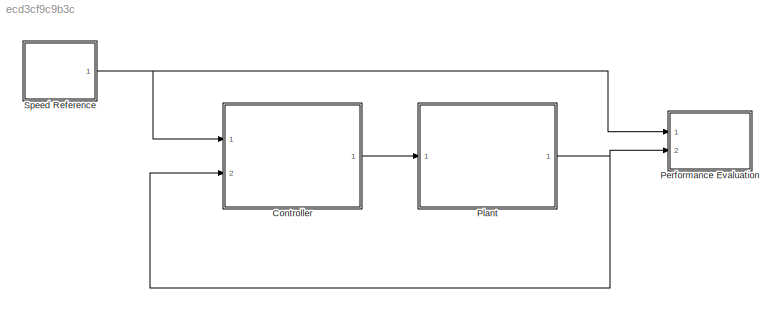
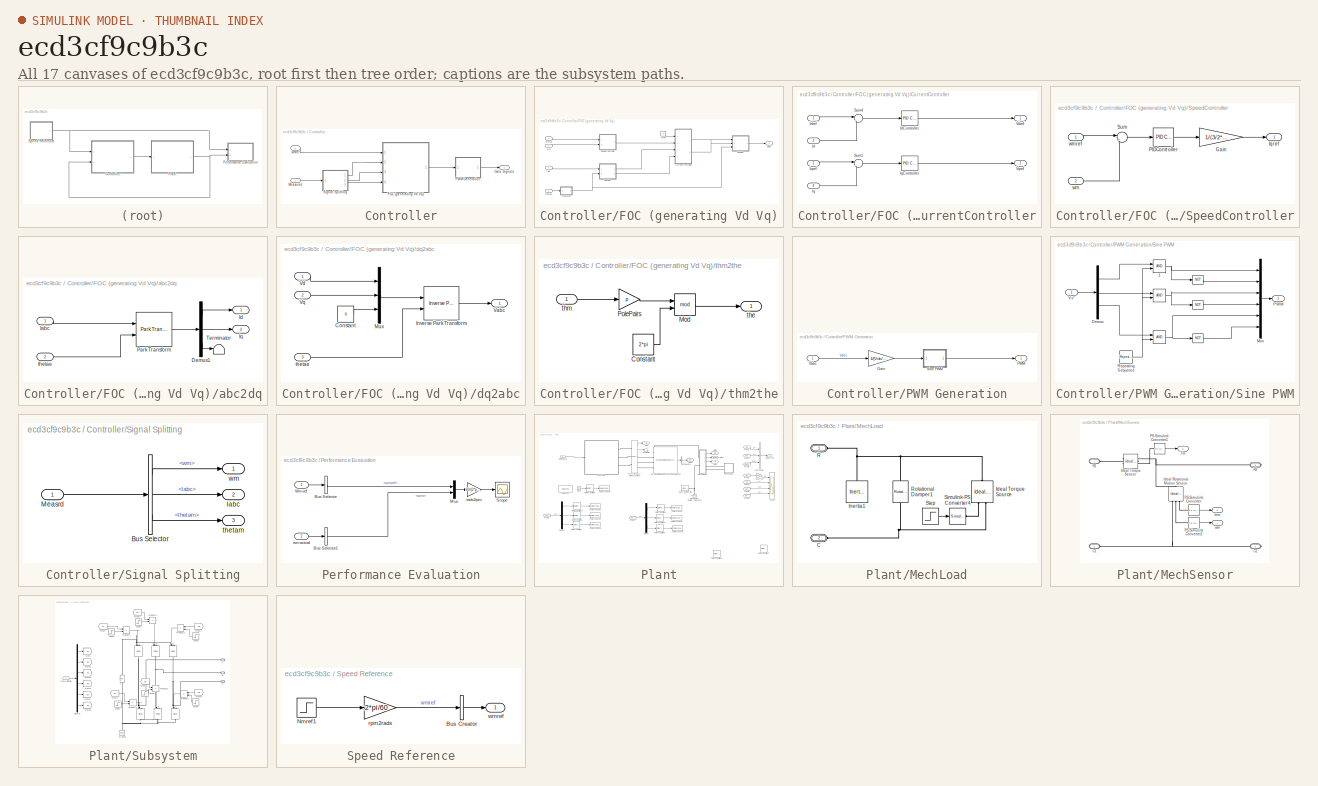
[diagram: thumbnail index - all 17 canvases of the model, root first then tree order]
MODEL slx_ecd3cf9c9b3c
KIND model
CONFIG AbsTol = auto
CONFIG EnableMultiTasking = off
CONFIG FixedStep = auto
CONFIG InitFcn = Phi = 0.1;\nLd = 0.01;\nLq = 0.02;\nRs = 0.38;\np = 2;\nJm = 0.1e-3;\nDm = 1e-3;\nVdc = 100;\nfc = 10e3;\nTs = 1/fc/100;\nt  = 1/fc;\nKp_id = 3.6687;\nKi_id = 387.9764;\nKp_iq = 133.9450;\nKi_iq = 977.0344;\nKp_s = 0.0276;\nKi_s = 0.1598;
CONFIG MaxStep = auto
CONFIG MinStep = auto
CONFIG RelTol = 1e-3
CONFIG SampleTimeConstraint = Unconstrained
CONFIG SolverName = FixedStepAuto
CONFIG StartTime = 0.0
CONFIG StopTime = 0.5
BLOCK [SubSystem] Controller
  Ports = [2, 1]
  RequestExecContextInheritance = off
BLOCK [SubSystem] Controller/FOC (generating Vd Vq)
  Ports = [4, 1]
  RequestExecContextInheritance = off
BLOCK [SubSystem] Controller/FOC (generating Vd Vq)/CurrentController
  Ports = [4, 2]
  RequestExecContextInheritance = off
BLOCK [Inport] Controller/FOC (generating Vd Vq)/CurrentController/Id
  Port = 3
BLOCK [Reference] Controller/FOC (generating Vd Vq)/CurrentController/IdController  REF=pid_lib/PID Controller
  Ports = [1, 1]
  SourceBlock = pid_lib/PID Controller
  SourceProductBaseCode = SL
  SourceType = PID 1dof
BLOCK [Inport] Controller/FOC (generating Vd Vq)/CurrentController/Idref
BLOCK [Inport] Controller/FOC (generating Vd Vq)/CurrentController/Iq
  Port = 4
BLOCK [Reference] Controller/FOC (generating Vd Vq)/CurrentController/IqController  REF=pid_lib/PID Controller
  Ports = [1, 1]
  SourceBlock = pid_lib/PID Controller
  SourceProductBaseCode = SL
  SourceType = PID 1dof
BLOCK [Inport] Controller/FOC (generating Vd Vq)/CurrentController/Iqref
  Port = 2
BLOCK [Sum] Controller/FOC (generating Vd Vq)/CurrentController/Sum1
  Inputs = |+-
  Ports = [2, 1]
BLOCK [Sum] Controller/FOC (generating Vd Vq)/CurrentController/Sum4
  Inputs = |+-
  Ports = [2, 1]
BLOCK [Outport] Controller/FOC (generating Vd Vq)/CurrentController/Vdref
  VectorParamsAs1DForOutWhenUnconnected = off
BLOCK [Outport] Controller/FOC (generating Vd Vq)/CurrentController/Vqref
  Port = 2
  VectorParamsAs1DForOutWhenUnconnected = off
BLOCK [Inport] Controller/FOC (generating Vd Vq)/Iabc
  Port = 3
BLOCK [Constant] Controller/FOC (generating Vd Vq)/Idref
  SampleTime = -1
  Value = 0
BLOCK [SubSystem] Controller/FOC (generating Vd Vq)/SpeedController
  Ports = [2, 1]
  RequestExecContextInheritance = off
BLOCK [Gain] Controller/FOC (generating Vd Vq)/SpeedController/Gain
  Gain = 1/(3/2*p*Phi)
BLOCK [Outport] Controller/FOC (generating Vd Vq)/SpeedController/Iqref
  VectorParamsAs1DForOutWhenUnconnected = off
BLOCK [Reference] Controller/FOC (generating Vd Vq)/SpeedController/PIDController  REF=pid_lib/PID Controller
  Ports = [1, 1]
  SourceBlock = pid_lib/PID Controller
  SourceProductBaseCode = SL
  SourceType = PID 1dof
BLOCK [Sum] Controller/FOC (generating Vd Vq)/SpeedController/Sum
  Inputs = |+-
  Ports = [2, 1]
BLOCK [Inport] Controller/FOC (generating Vd Vq)/SpeedController/wm
  Port = 2
BLOCK [Inport] Controller/FOC (generating Vd Vq)/SpeedController/wmref
BLOCK [Outport] Controller/FOC (generating Vd Vq)/Vabc
  VectorParamsAs1DForOutWhenUnconnected = off
BLOCK [SubSystem] Controller/FOC (generating Vd Vq)/abc2dq
  Ports = [2, 2]
  RequestExecContextInheritance = off
BLOCK [Demux] Controller/FOC (generating Vd Vq)/abc2dq/Demux1
  Outputs = 3
  Ports = [1, 3]
BLOCK [Inport] Controller/FOC (generating Vd Vq)/abc2dq/Iabc
BLOCK [Outport] Controller/FOC (generating Vd Vq)/abc2dq/Id
  VectorParamsAs1DForOutWhenUnconnected = off
BLOCK [Outport] Controller/FOC (generating Vd Vq)/abc2dq/Iq
  Port = 2
  VectorParamsAs1DForOutWhenUnconnected = off
BLOCK [Reference] Controller/FOC (generating Vd Vq)/abc2dq/Park Transform  REF=eeTransforms/Park Transform
  Ports = [2, 1]
  SourceBlock = eeTransforms/Park Transform
  SourceProductBaseCode = PS
  SourceType = Park Transform
BLOCK [Terminator] Controller/FOC (generating Vd Vq)/abc2dq/Terminator
BLOCK [Inport] Controller/FOC (generating Vd Vq)/abc2dq/thetae
  Port = 2
BLOCK [SubSystem] Controller/FOC (generating Vd Vq)/dq2abc
  Ports = [3, 1]
  RequestExecContextInheritance = off
BLOCK [Constant] Controller/FOC (generating Vd Vq)/dq2abc/Constant
  Value = 0
BLOCK [Reference] Controller/FOC (generating Vd Vq)/dq2abc/Inverse Park Transform  REF=eeTransforms/Inverse
Park Transform
  Ports = [2, 1]
  SourceBlock = eeTransforms/Inverse\nPark Transform
  SourceProductBaseCode = PS
  SourceType = Inverse Park Transform
BLOCK [Mux] Controller/FOC (generating Vd Vq)/dq2abc/Mux
  DisplayOption = bar
  Inputs = 3
  Ports = [3, 1]
BLOCK [Outport] Controller/FOC (generating Vd Vq)/dq2abc/Vabc
  VectorParamsAs1DForOutWhenUnconnected = off
BLOCK [Inport] Controller/FOC (generating Vd Vq)/dq2abc/Vd
BLOCK [Inport] Controller/FOC (generating Vd Vq)/dq2abc/Vq
  Port = 2
BLOCK [Inport] Controller/FOC (generating Vd Vq)/dq2abc/thetae
  Port = 3
BLOCK [Inport] Controller/FOC (generating Vd Vq)/thetam
  Port = 4
BLOCK [SubSystem] Controller/FOC (generating Vd Vq)/thm2the
  Ports = [1, 1]
  RequestExecContextInheritance = off
BLOCK [Constant] Controller/FOC (generating Vd Vq)/thm2the/Constant
  Value = 2*pi
BLOCK [Math] Controller/FOC (generating Vd Vq)/thm2the/Mod
  Operator = mod
  Ports = [2, 1]
  SignedPower = on
BLOCK [Gain] Controller/FOC (generating Vd Vq)/thm2the/PolePairs
  Gain = p
BLOCK [Outport] Controller/FOC (generating Vd Vq)/thm2the/the
  VectorParamsAs1DForOutWhenUnconnected = off
BLOCK [Inport] Controller/FOC (generating Vd Vq)/thm2the/thm
BLOCK [Inport] Controller/FOC (generating Vd Vq)/wm
  Port = 2
BLOCK [Inport] Controller/FOC (generating Vd Vq)/wmref
BLOCK [Outport] Controller/Gate Signals
  VectorParamsAs1DForOutWhenUnconnected = off
BLOCK [Inport] Controller/Measured
  Port = 2
BLOCK [SubSystem] Controller/PWM Generation
  Ports = [1, 1]
  RequestExecContextInheritance = off
BLOCK [Gain] Controller/PWM Generation/Gain
  Gain = 1/(Vdc/2)
BLOCK [Outport] Controller/PWM Generation/PWM
  VectorParamsAs1DForOutWhenUnconnected = off
BLOCK [SubSystem] Controller/PWM Generation/Sine PWM
  Ports = [1, 1]
  RequestExecContextInheritance = off
BLOCK [RelationalOperator] Controller/PWM Generation/Sine PWM/  
  InputSameDT = off
  OutDataTypeStr = boolean
  Ports = [2, 1]
BLOCK [RelationalOperator] Controller/PWM Generation/Sine PWM/   
  InputSameDT = off
  OutDataTypeStr = boolean
  Ports = [2, 1]
BLOCK [Logic] Controller/PWM Generation/Sine PWM/    
  AllPortsSameDT = off
  Operator = NOT
  OutDataTypeStr = boolean
  Ports = [1, 1]
BLOCK [Logic] Controller/PWM Generation/Sine PWM/     
  AllPortsSameDT = off
  Operator = NOT
  OutDataTypeStr = boolean
  Ports = [1, 1]
BLOCK [Logic] Controller/PWM Generation/Sine PWM/       
  AllPortsSameDT = off
  Operator = NOT
  OutDataTypeStr = boolean
  Ports = [1, 1]
BLOCK [RelationalOperator] Controller/PWM Generation/Sine PWM/ 1
  InputSameDT = off
  OutDataTypeStr = boolean
  Ports = [2, 1]
BLOCK [Demux] Controller/PWM Generation/Sine PWM/Demux
  Outputs = 3
  Ports = [1, 3]
BLOCK [Mux] Controller/PWM Generation/Sine PWM/Mux
  DisplayOption = bar
  Inputs = 6
  Ports = [6, 1]
BLOCK [Outport] Controller/PWM Generation/Sine PWM/PWM
  VectorParamsAs1DForOutWhenUnconnected = off
BLOCK [Reference] Controller/PWM Generation/Sine PWM/Repeating Sequence  REF=simulink/Sources/Repeating
Sequence
  Ports = [0, 1]
  SourceBlock = simulink/Sources/Repeating\nSequence
  SourceProductBaseCode = SL
  SourceType = Repeating table
BLOCK [Inport] Controller/PWM Generation/Sine PWM/Vs*
BLOCK [Inport] Controller/PWM Generation/Vabc
BLOCK [SubSystem] Controller/Signal Splitting
  Ports = [1, 3]
  RequestExecContextInheritance = off
BLOCK [BusSelector] Controller/Signal Splitting/Bus Selector
  OutputSignals = wm,Iabc,thetam
  Ports = [1, 3]
BLOCK [Outport] Controller/Signal Splitting/Iabc
  Port = 2
  VectorParamsAs1DForOutWhenUnconnected = off
BLOCK [Inport] Controller/Signal Splitting/Measrd
BLOCK [Outport] Controller/Signal Splitting/thetam
  Port = 3
  VectorParamsAs1DForOutWhenUnconnected = off
BLOCK [Outport] Controller/Signal Splitting/wm
  VectorParamsAs1DForOutWhenUnconnected = off
BLOCK [Inport] Controller/wmref
BLOCK [SubSystem] Performance Evaluation
  Ports = [2]
  RequestExecContextInheritance = off
BLOCK [BusSelector] Performance Evaluation/Bus Selector
  OutputSignals = wmref
  Ports = [1, 1]
BLOCK [BusSelector] Performance Evaluation/Bus Selector1
  OutputSignals = wm
  Ports = [1, 1]
BLOCK [Mux] Performance Evaluation/Mux
  DisplayOption = bar
  Inputs = 2
  Ports = [2, 1]
BLOCK [Scope] Performance Evaluation/Scope
  Floating = off
  NumInputPorts = 1
  Ports = [1]
  ScopeSpecificationString = Simulink.scopes.TimeScopeBlockCfg('CurrentConfiguration', extmgr.ConfigurationSet(extmgr.Configuration('Core','General UI',true),extmgr.Configuration('Core','Source UI',true),extmgr.Configuration('Sources','WiredSimulink',true),extmgr.Configuration('Visuals','Time Domain',true,'SerializedDisplays',{struct('MinYLimReal','995.86027','MaxYLimReal','1007.02255','YLabelReal','','MinYLimMag','995.86027'...<+1658ch>
BLOCK [Inport] Performance Evaluation/Wmref
BLOCK [Gain] Performance Evaluation/rads2rpm
  Gain = 60/(2*pi)
BLOCK [Inport] Performance Evaluation/wmactual
  Port = 2
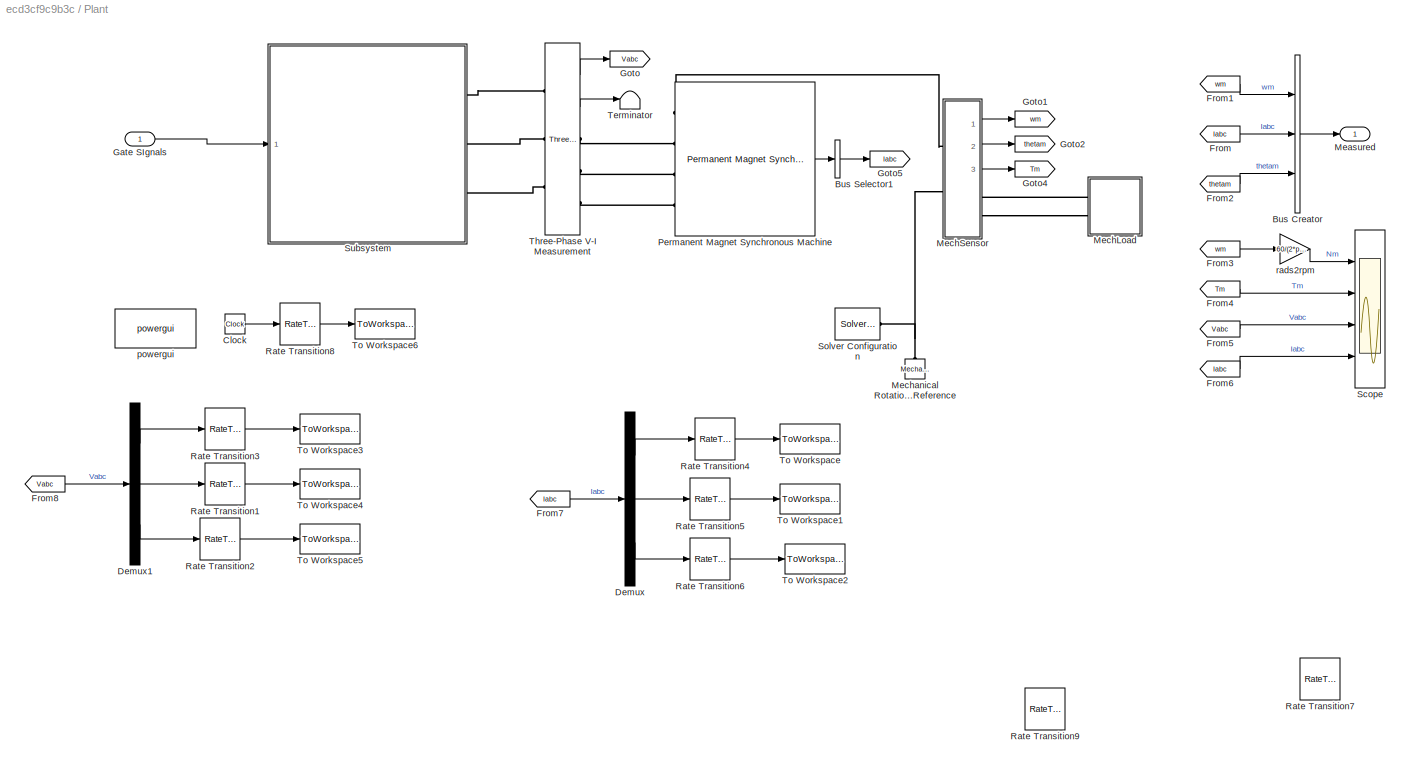
BLOCK [SubSystem] Plant
  Ports = [1, 1]
  RequestExecContextInheritance = off
BLOCK [BusCreator] Plant/Bus Creator
  DisplayOption = bar
  InheritFromInputs = on
  Inputs = 3
  Ports = [3, 1]
BLOCK [BusSelector] Plant/Bus Selector1
  OutputAsBus = on
  OutputSignals = Stator current is_a (A),Stator current is_b (A),Stator current is_c (A)
  Ports = [1, 1]
BLOCK [Clock] Plant/Clock
BLOCK [Demux] Plant/Demux
  Outputs = 3
  Ports = [1, 3]
BLOCK [Demux] Plant/Demux1
  Outputs = 3
  Ports = [1, 3]
BLOCK [From] Plant/From
  GotoTag = Iabc
BLOCK [From] Plant/From1
  GotoTag = wm
BLOCK [From] Plant/From2
  GotoTag = thetam
BLOCK [From] Plant/From3
  GotoTag = wm
BLOCK [From] Plant/From4
  GotoTag = Tm
BLOCK [From] Plant/From5
  GotoTag = Vabc
BLOCK [From] Plant/From6
  GotoTag = Iabc
BLOCK [From] Plant/From7
  GotoTag = Iabc
BLOCK [From] Plant/From8
  GotoTag = Vabc
BLOCK [Inport] Plant/Gate SIgnals
BLOCK [Goto] Plant/Goto
  GotoTag = Vabc
BLOCK [Goto] Plant/Goto1
  GotoTag = wm
BLOCK [Goto] Plant/Goto2
  GotoTag = thetam
BLOCK [Goto] Plant/Goto4
  GotoTag = Tm
BLOCK [Goto] Plant/Goto5
  GotoTag = Iabc
BLOCK [Outport] Plant/Measured
  VectorParamsAs1DForOutWhenUnconnected = off
BLOCK [SubSystem] Plant/MechLoad
  Ports = [0, 0, 0, 0, 0, 2]
  RequestExecContextInheritance = off
BLOCK [PMIOPort] Plant/MechLoad/C
  Port = 2
  Side = Left
BLOCK [Reference] Plant/MechLoad/Ideal Torque Source  REF=fl_lib/Mechanical/Mechanical Sources/Ideal Torque Source
  NameLocation = right
  Ports = [0, 0, 0, 0, 0, 1, 2]
  SourceBlock = fl_lib/Mechanical/Mechanical Sources/Ideal Torque Source
  SourceProductBaseCode = SS
  SourceType = Ideal Torque Source
BLOCK [Reference] Plant/MechLoad/Inertia1  REF=fl_lib/Mechanical/Rotational Elements/Inertia
  NameLocation = right
  Ports = [0, 0, 0, 0, 0, 1]
  SourceBlock = fl_lib/Mechanical/Rotational Elements/Inertia
  SourceProductBaseCode = SS
  SourceType = Inertia
BLOCK [PMIOPort] Plant/MechLoad/R
  Side = Left
BLOCK [Reference] Plant/MechLoad/Rotational Damper1  REF=fl_lib/Mechanical/Rotational Elements/Rotational Damper
  NameLocation = right
  Ports = [0, 0, 0, 0, 0, 1, 1]
  SourceBlock = fl_lib/Mechanical/Rotational Elements/Rotational Damper
  SourceProductBaseCode = SS
  SourceType = Rotational Damper
BLOCK [Reference] Plant/MechLoad/Simulink-PS Converter4  REF=nesl_utility/Simulink-PS
Converter
  Ports = [1, 0, 0, 0, 0, 0, 1]
  SourceBlock = nesl_utility/Simulink-PS\nConverter
  SourceProductBaseCode = SS
  SourceType = Simulink-PS\nConverter
BLOCK [Step] Plant/MechLoad/Step
  After = 0.2
  SampleTime = 0
  Time = 10
BLOCK [SubSystem] Plant/MechSensor
  Ports = [0, 3, 0, 0, 0, 2, 2]
  RequestExecContextInheritance = off
BLOCK [PMIOPort] Plant/MechSensor/C1
  Port = 2
  Side = Left
BLOCK [PMIOPort] Plant/MechSensor/C2
  Port = 4
  Side = Right
BLOCK [Reference] Plant/MechSensor/Ideal Rotational Motion Sensor  REF=fl_lib/Mechanical/Mechanical Sensors/Ideal Rotational
Motion Sensor
  NameLocation = right
  Ports = [0, 0, 0, 0, 0, 1, 3]
  SourceBlock = fl_lib/Mechanical/Mechanical Sensors/Ideal Rotational\nMotion Sensor
  SourceProductBaseCode = SS
  SourceType = Ideal Rotational\nMotion Sensor
BLOCK [Reference] Plant/MechSensor/Ideal Torque Sensor  REF=fl_lib/Mechanical/Mechanical Sensors/Ideal Torque Sensor
  Ports = [0, 0, 0, 0, 0, 1, 2]
  SourceBlock = fl_lib/Mechanical/Mechanical Sensors/Ideal Torque Sensor
  SourceProductBaseCode = SS
  SourceType = Ideal Torque Sensor
BLOCK [Reference] Plant/MechSensor/PS-Simulink Converter  REF=nesl_utility/PS-Simulink
Converter
  Ports = [0, 1, 0, 0, 0, 1]
  SourceBlock = nesl_utility/PS-Simulink\nConverter
  SourceProductBaseCode = SS
  SourceType = PS-Simulink\nConverter
BLOCK [Reference] Plant/MechSensor/PS-Simulink Converter1  REF=nesl_utility/PS-Simulink
Converter
  Ports = [0, 1, 0, 0, 0, 1]
  SourceBlock = nesl_utility/PS-Simulink\nConverter
  SourceProductBaseCode = SS
  SourceType = PS-Simulink\nConverter
BLOCK [Reference] Plant/MechSensor/PS-Simulink Converter2  REF=nesl_utility/PS-Simulink
Converter
  Ports = [0, 1, 0, 0, 0, 1]
  SourceBlock = nesl_utility/PS-Simulink\nConverter
  SourceProductBaseCode = SS
  SourceType = PS-Simulink\nConverter
BLOCK [PMIOPort] Plant/MechSensor/R1
  Side = Left
BLOCK [PMIOPort] Plant/MechSensor/R2
  Port = 3
  Side = Right
BLOCK [Outport] Plant/MechSensor/Tm
  Port = 3
  VectorParamsAs1DForOutWhenUnconnected = off
BLOCK [Outport] Plant/MechSensor/thm
  Port = 2
  VectorParamsAs1DForOutWhenUnconnected = off
BLOCK [Outport] Plant/MechSensor/wm
  VectorParamsAs1DForOutWhenUnconnected = off
BLOCK [Reference] Plant/Mechanical Rotational Reference  REF=fl_lib/Mechanical/Rotational Elements/Mechanical
Rotational Reference
  NameLocation = right
  Ports = [0, 0, 0, 0, 0, 1]
  SourceBlock = fl_lib/Mechanical/Rotational Elements/Mechanical\nRotational Reference
  SourceProductBaseCode = SS
  SourceType = Mechanical\nRotational Reference
BLOCK [Reference] Plant/Permanent Magnet Synchronous Machine  REF=powerlib/Machines/Permanent Magnet
Synchronous Machine
  Ports = [0, 1, 0, 0, 0, 4]
  SourceBlock = powerlib/Machines/Permanent Magnet\nSynchronous Machine
  SourceProductBaseCode = PS
  SourceType = Permanent Magnet Synchronous Machine
BLOCK [RateTransition] Plant/Rate Transition1
  OutPortSampleTime = 10^-3
BLOCK [RateTransition] Plant/Rate Transition2
  OutPortSampleTime = 10^-3
BLOCK [RateTransition] Plant/Rate Transition3
  OutPortSampleTime = 10^-3
BLOCK [RateTransition] Plant/Rate Transition4
  OutPortSampleTime = 10^-3
BLOCK [RateTransition] Plant/Rate Transition5
  OutPortSampleTime = 10^-3
BLOCK [RateTransition] Plant/Rate Transition6
  OutPortSampleTime = 10^-3
BLOCK [RateTransition] Plant/Rate Transition7
  Commented = on
  OutPortSampleTime = 10^-4
BLOCK [RateTransition] Plant/Rate Transition8
  OutPortSampleTime = 10^-3
BLOCK [RateTransition] Plant/Rate Transition9
  Commented = on
  OutPortSampleTime = 10^-3
BLOCK [Scope] Plant/Scope
  Floating = off
  NumInputPorts = 4
  Ports = [4]
  ScopeSpecificationString = Simulink.scopes.TimeScopeBlockCfg('CurrentConfiguration', extmgr.ConfigurationSet(extmgr.Configuration('Core','General UI',true,'FigureColor',[1 1 1]),extmgr.Configuration('Core','Source UI',true),extmgr.Configuration('Sources','WiredSimulink',true,'DataLoggingVariableName','ScopeData1'),extmgr.Configuration('Visuals','Time Domain',true,'SerializedDisplays',{struct('MinYLimReal','-125.04242','MaxY...<+4553ch>
BLOCK [Reference] Plant/Solver Configuration  REF=nesl_utility/Solver
Configuration
  Ports = [0, 0, 0, 0, 0, 0, 1]
  SourceBlock = nesl_utility/Solver\nConfiguration
  SourceProductBaseCode = SS
  SourceType = Solver\nConfiguration
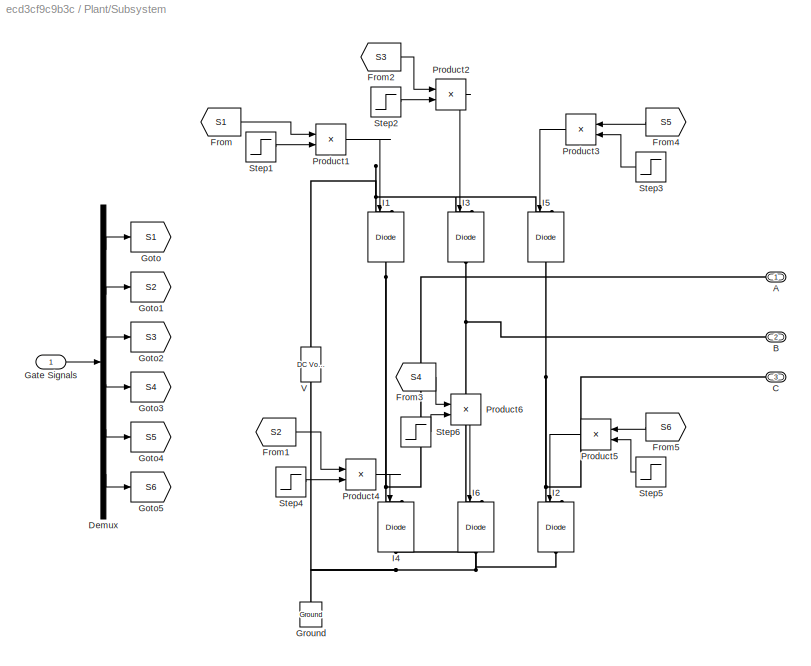
BLOCK [SubSystem] Plant/Subsystem
  Ports = [1, 0, 0, 0, 0, 0, 3]
  RequestExecContextInheritance = off
BLOCK [PMIOPort] Plant/Subsystem/A 
  Side = Right
BLOCK [PMIOPort] Plant/Subsystem/B 
  Port = 2
  Side = Right
BLOCK [PMIOPort] Plant/Subsystem/C 
  Port = 3
  Side = Right
BLOCK [Demux] Plant/Subsystem/Demux
  Outputs = 6
  Ports = [1, 6]
BLOCK [From] Plant/Subsystem/From
  GotoTag = S1
BLOCK [From] Plant/Subsystem/From1
  GotoTag = S2
BLOCK [From] Plant/Subsystem/From2
  GotoTag = S3
BLOCK [From] Plant/Subsystem/From3
  GotoTag = S4
BLOCK [From] Plant/Subsystem/From4
  GotoTag = S5
BLOCK [From] Plant/Subsystem/From5
  GotoTag = S6
BLOCK [Inport] Plant/Subsystem/Gate Signals
BLOCK [Goto] Plant/Subsystem/Goto
  GotoTag = S1
BLOCK [Goto] Plant/Subsystem/Goto1
  GotoTag = S2
BLOCK [Goto] Plant/Subsystem/Goto2
  GotoTag = S3
BLOCK [Goto] Plant/Subsystem/Goto3
  GotoTag = S4
BLOCK [Goto] Plant/Subsystem/Goto4
  GotoTag = S5
BLOCK [Goto] Plant/Subsystem/Goto5
  GotoTag = S6
BLOCK [Reference] Plant/Subsystem/Ground  REF=powerlib/Elements/Ground
  NameLocation = right
  Ports = [0, 0, 0, 0, 0, 1]
  SourceBlock = powerlib/Elements/Ground
  SourceProductBaseCode = PS
  SourceType = Ground
BLOCK [Reference] Plant/Subsystem/I1  REF=powerlib/Power
Electronics/IGBT//Diode
  NameLocation = left
  Ports = [1, 0, 0, 0, 0, 1, 1]
  SourceBlock = powerlib/Power\nElectronics/IGBT//Diode
  SourceProductBaseCode = PS
  SourceType = IGBT/Diode
BLOCK [Reference] Plant/Subsystem/I2  REF=powerlib/Power
Electronics/IGBT//Diode
  NameLocation = left
  Ports = [1, 0, 0, 0, 0, 1, 1]
  SourceBlock = powerlib/Power\nElectronics/IGBT//Diode
  SourceProductBaseCode = PS
  SourceType = IGBT/Diode
BLOCK [Reference] Plant/Subsystem/I3  REF=powerlib/Power
Electronics/IGBT//Diode
  NameLocation = left
  Ports = [1, 0, 0, 0, 0, 1, 1]
  SourceBlock = powerlib/Power\nElectronics/IGBT//Diode
  SourceProductBaseCode = PS
  SourceType = IGBT/Diode
BLOCK [Reference] Plant/Subsystem/I4  REF=powerlib/Power
Electronics/IGBT//Diode
  NameLocation = left
  Ports = [1, 0, 0, 0, 0, 1, 1]
  SourceBlock = powerlib/Power\nElectronics/IGBT//Diode
  SourceProductBaseCode = PS
  SourceType = IGBT/Diode
BLOCK [Reference] Plant/Subsystem/I5  REF=powerlib/Power
Electronics/IGBT//Diode
  NameLocation = left
  Ports = [1, 0, 0, 0, 0, 1, 1]
  SourceBlock = powerlib/Power\nElectronics/IGBT//Diode
  SourceProductBaseCode = PS
  SourceType = IGBT/Diode
BLOCK [Reference] Plant/Subsystem/I6  REF=powerlib/Power
Electronics/IGBT//Diode
  NameLocation = left
  Ports = [1, 0, 0, 0, 0, 1, 1]
  SourceBlock = powerlib/Power\nElectronics/IGBT//Diode
  SourceProductBaseCode = PS
  SourceType = IGBT/Diode
BLOCK [Product] Plant/Subsystem/Product1
  Ports = [2, 1]
BLOCK [Product] Plant/Subsystem/Product2
  NameLocation = left
  Ports = [2, 1]
BLOCK [Product] Plant/Subsystem/Product3
  NameLocation = right
  Ports = [2, 1]
BLOCK [Product] Plant/Subsystem/Product4
  NameLocation = left
  Ports = [2, 1]
BLOCK [Product] Plant/Subsystem/Product5
  NameLocation = right
  Ports = [2, 1]
BLOCK [Product] Plant/Subsystem/Product6
  NameLocation = left
  Ports = [2, 1]
BLOCK [Step] Plant/Subsystem/Step1
  After = s1
  Before = 1
  SampleTime = 0
  Time = 0.2
BLOCK [Step] Plant/Subsystem/Step2
  After = s3
  Before = 1
  SampleTime = 0
  Time = 0.2
BLOCK [Step] Plant/Subsystem/Step3
  After = s5
  Before = 1
  SampleTime = 0
  Time = 0.2
BLOCK [Step] Plant/Subsystem/Step4
  After = s2
  Before = 1
  SampleTime = 0
  Time = 0.2
BLOCK [Step] Plant/Subsystem/Step5
  After = s6
  Before = 1
  SampleTime = 0
  Time = 0.2
BLOCK [Step] Plant/Subsystem/Step6
  After = s4
  Before = 1
  SampleTime = 0
  Time = 0.2
BLOCK [Reference] Plant/Subsystem/V  REF=powerlib/Electrical
Sources/DC Voltage Source
  NameLocation = right
  Ports = [0, 0, 0, 0, 0, 1, 1]
  SourceBlock = powerlib/Electrical\nSources/DC Voltage Source
  SourceProductBaseCode = PS
  SourceType = DC Voltage Source
BLOCK [Terminator] Plant/Terminator
BLOCK [Reference] Plant/Three-Phase V-I Measurement  REF=powerlib/Measurements/Three-Phase
V-I Measurement
  Ports = [0, 2, 0, 0, 0, 3, 3]
  SourceBlock = powerlib/Measurements/Three-Phase\nV-I Measurement
  SourceProductBaseCode = PS
  SourceType = Three-Phase VI Measurement
BLOCK [ToWorkspace] Plant/To Workspace
  FixptAsFi = on
  MaxDataPoints = inf
  Ports = [1]
  SampleTime = -1
  Save2DSignal = 2-D array (concatenate along first dimension)
  VariableName = Ia1
BLOCK [ToWorkspace] Plant/To Workspace1
  FixptAsFi = on
  MaxDataPoints = inf
  Ports = [1]
  SampleTime = -1
  Save2DSignal = 2-D array (concatenate along first dimension)
  VariableName = Ib1
BLOCK [ToWorkspace] Plant/To Workspace2
  FixptAsFi = on
  MaxDataPoints = inf
  Ports = [1]
  SampleTime = -1
  Save2DSignal = 2-D array (concatenate along first dimension)
  VariableName = Ic1
BLOCK [ToWorkspace] Plant/To Workspace3
  FixptAsFi = on
  MaxDataPoints = inf
  Ports = [1]
  SampleTime = -1
  Save2DSignal = 2-D array (concatenate along first dimension)
  VariableName = Va1
BLOCK [ToWorkspace] Plant/To Workspace4
  FixptAsFi = on
  MaxDataPoints = inf
  Ports = [1]
  SampleTime = -1
  Save2DSignal = 2-D array (concatenate along first dimension)
  VariableName = Vb1
BLOCK [ToWorkspace] Plant/To Workspace5
  FixptAsFi = on
  MaxDataPoints = inf
  Ports = [1]
  SampleTime = -1
  Save2DSignal = 2-D array (concatenate along first dimension)
  VariableName = Vc1
BLOCK [ToWorkspace] Plant/To Workspace6
  FixptAsFi = on
  MaxDataPoints = inf
  Ports = [1]
  SampleTime = -1
  Save2DSignal = 2-D array (concatenate along first dimension)
  VariableName = Tout
BLOCK [Reference] Plant/powergui  REF=powerlib/powergui
  Ports = []
  Priority = 1
  SourceBlock = powerlib/powergui
  SourceProductBaseCode = PS
  SourceType = PSB option menu block
BLOCK [Gain] Plant/rads2rpm
  Gain = 60/(2*pi)
BLOCK [SubSystem] Speed Reference
  Ports = [0, 1]
  RequestExecContextInheritance = off
BLOCK [BusCreator] Speed Reference/Bus Creator
  DisplayOption = bar
  InheritFromInputs = on
  Inputs = 1
  Ports = [1, 1]
BLOCK [Step] Speed Reference/Nmref1
  After = 1000
  SampleTime = 0
  Time = 0
BLOCK [Gain] Speed Reference/rpm2rads
  Gain = 2*pi/60
BLOCK [Outport] Speed Reference/wmref
  VectorParamsAs1DForOutWhenUnconnected = off
LINE Controller/FOC (generating Vd Vq)/CurrentController/Id:1 -> Controller/FOC (generating Vd Vq)/CurrentController/Sum4:2
LINE Controller/FOC (generating Vd Vq)/CurrentController/IdController:1 -> Controller/FOC (generating Vd Vq)/CurrentController/Vdref:1
LINE Controller/FOC (generating Vd Vq)/CurrentController/Idref:1 -> Controller/FOC (generating Vd Vq)/CurrentController/Sum4:1
LINE Controller/FOC (generating Vd Vq)/CurrentController/Iq:1 -> Controller/FOC (generating Vd Vq)/CurrentController/Sum1:2
LINE Controller/FOC (generating Vd Vq)/CurrentController/IqController:1 -> Controller/FOC (generating Vd Vq)/CurrentController/Vqref:1
LINE Controller/FOC (generating Vd Vq)/CurrentController/Iqref:1 -> Controller/FOC (generating Vd Vq)/CurrentController/Sum1:1
LINE Controller/FOC (generating Vd Vq)/CurrentController/Sum1:1 -> Controller/FOC (generating Vd Vq)/CurrentController/IqController:1
LINE Controller/FOC (generating Vd Vq)/CurrentController/Sum4:1 -> Controller/FOC (generating Vd Vq)/CurrentController/IdController:1
LINE Controller/FOC (generating Vd Vq)/CurrentController:1 -> Controller/FOC (generating Vd Vq)/dq2abc:1
LINE Controller/FOC (generating Vd Vq)/CurrentController:2 -> Controller/FOC (generating Vd Vq)/dq2abc:2
LINE Controller/FOC (generating Vd Vq)/Iabc:1 -> Controller/FOC (generating Vd Vq)/abc2dq:1
LINE Controller/FOC (generating Vd Vq)/Idref:1 -> Controller/FOC (generating Vd Vq)/CurrentController:1
LINE Controller/FOC (generating Vd Vq)/SpeedController/Gain:1 -> Controller/FOC (generating Vd Vq)/SpeedController/Iqref:1
LINE Controller/FOC (generating Vd Vq)/SpeedController/PIDController:1 -> Controller/FOC (generating Vd Vq)/SpeedController/Gain:1
LINE Controller/FOC (generating Vd Vq)/SpeedController/Sum:1 -> Controller/FOC (generating Vd Vq)/SpeedController/PIDController:1
LINE Controller/FOC (generating Vd Vq)/SpeedController/wm:1 -> Controller/FOC (generating Vd Vq)/SpeedController/Sum:2
LINE Controller/FOC (generating Vd Vq)/SpeedController/wmref:1 -> Controller/FOC (generating Vd Vq)/SpeedController/Sum:1
LINE Controller/FOC (generating Vd Vq)/SpeedController:1 -> Controller/FOC (generating Vd Vq)/CurrentController:2
LINE Controller/FOC (generating Vd Vq)/abc2dq/Demux1:1 -> Controller/FOC (generating Vd Vq)/abc2dq/Id:1
LINE Controller/FOC (generating Vd Vq)/abc2dq/Demux1:2 -> Controller/FOC (generating Vd Vq)/abc2dq/Iq:1
LINE Controller/FOC (generating Vd Vq)/abc2dq/Demux1:3 -> Controller/FOC (generating Vd Vq)/abc2dq/Terminator:1
LINE Controller/FOC (generating Vd Vq)/abc2dq/Iabc:1 -> Controller/FOC (generating Vd Vq)/abc2dq/Park Transform:1
LINE Controller/FOC (generating Vd Vq)/abc2dq/Park Transform:1 -> Controller/FOC (generating Vd Vq)/abc2dq/Demux1:1
LINE Controller/FOC (generating Vd Vq)/abc2dq/thetae:1 -> Controller/FOC (generating Vd Vq)/abc2dq/Park Transform:2
LINE Controller/FOC (generating Vd Vq)/abc2dq:1 -> Controller/FOC (generating Vd Vq)/CurrentController:3
LINE Controller/FOC (generating Vd Vq)/abc2dq:2 -> Controller/FOC (generating Vd Vq)/CurrentController:4
LINE Controller/FOC (generating Vd Vq)/dq2abc/Constant:1 -> Controller/FOC (generating Vd Vq)/dq2abc/Mux:3
LINE Controller/FOC (generating Vd Vq)/dq2abc/Inverse Park Transform:1 -> Controller/FOC (generating Vd Vq)/dq2abc/Vabc:1
LINE Controller/FOC (generating Vd Vq)/dq2abc/Mux:1 -> Controller/FOC (generating Vd Vq)/dq2abc/Inverse Park Transform:1
LINE Controller/FOC (generating Vd Vq)/dq2abc/Vd:1 -> Controller/FOC (generating Vd Vq)/dq2abc/Mux:1
LINE Controller/FOC (generating Vd Vq)/dq2abc/Vq:1 -> Controller/FOC (generating Vd Vq)/dq2abc/Mux:2
LINE Controller/FOC (generating Vd Vq)/dq2abc/thetae:1 -> Controller/FOC (generating Vd Vq)/dq2abc/Inverse Park Transform:2
LINE Controller/FOC (generating Vd Vq)/dq2abc:1 -> Controller/FOC (generating Vd Vq)/Vabc:1
LINE Controller/FOC (generating Vd Vq)/thetam:1 -> Controller/FOC (generating Vd Vq)/thm2the:1
LINE Controller/FOC (generating Vd Vq)/thm2the/Constant:1 -> Controller/FOC (generating Vd Vq)/thm2the/Mod:2
LINE Controller/FOC (generating Vd Vq)/thm2the/Mod:1 -> Controller/FOC (generating Vd Vq)/thm2the/the:1
LINE Controller/FOC (generating Vd Vq)/thm2the/PolePairs:1 -> Controller/FOC (generating Vd Vq)/thm2the/Mod:1
LINE Controller/FOC (generating Vd Vq)/thm2the/thm:1 -> Controller/FOC (generating Vd Vq)/thm2the/PolePairs:1
NET Controller/FOC (generating Vd Vq)/thm2the:1 -> Controller/FOC (generating Vd Vq)/abc2dq:2, Controller/FOC (generating Vd Vq)/dq2abc:3
LINE Controller/FOC (generating Vd Vq)/wm:1 -> Controller/FOC (generating Vd Vq)/SpeedController:2
LINE Controller/FOC (generating Vd Vq)/wmref:1 -> Controller/FOC (generating Vd Vq)/SpeedController:1
LINE Controller/FOC (generating Vd Vq):1 -> Controller/PWM Generation:1
LINE Controller/Measured:1 -> Controller/Signal Splitting:1
LINE Controller/PWM Generation/Gain:1 -> Controller/PWM Generation/Sine PWM:1
LINE Controller/PWM Generation/Sine PWM/       :1 -> Controller/PWM Generation/Sine PWM/Mux:6
LINE Controller/PWM Generation/Sine PWM/     :1 -> Controller/PWM Generation/Sine PWM/Mux:4
LINE Controller/PWM Generation/Sine PWM/    :1 -> Controller/PWM Generation/Sine PWM/Mux:2
NET Controller/PWM Generation/Sine PWM/   :1 -> Controller/PWM Generation/Sine PWM/       :1, Controller/PWM Generation/Sine PWM/Mux:5
NET Controller/PWM Generation/Sine PWM/  :1 -> Controller/PWM Generation/Sine PWM/     :1, Controller/PWM Generation/Sine PWM/Mux:3
NET Controller/PWM Generation/Sine PWM/ 1:1 -> Controller/PWM Generation/Sine PWM/    :1, Controller/PWM Generation/Sine PWM/Mux:1
LINE Controller/PWM Generation/Sine PWM/Demux:1 -> Controller/PWM Generation/Sine PWM/ 1:1
LINE Controller/PWM Generation/Sine PWM/Demux:2 -> Controller/PWM Generation/Sine PWM/  :1
LINE Controller/PWM Generation/Sine PWM/Demux:3 -> Controller/PWM Generation/Sine PWM/   :1
LINE Controller/PWM Generation/Sine PWM/Mux:1 -> Controller/PWM Generation/Sine PWM/PWM:1
NET Controller/PWM Generation/Sine PWM/Repeating Sequence:1 -> Controller/PWM Generation/Sine PWM/   :2, Controller/PWM Generation/Sine PWM/  :2, Controller/PWM Generation/Sine PWM/ 1:2
LINE Controller/PWM Generation/Sine PWM/Vs*:1 -> Controller/PWM Generation/Sine PWM/Demux:1
LINE Controller/PWM Generation/Sine PWM:1 -> Controller/PWM Generation/PWM:1
LINE Controller/PWM Generation/Vabc:1 -> Controller/PWM Generation/Gain:1
LINE Controller/PWM Generation:1 -> Controller/Gate Signals:1
LINE Controller/Signal Splitting/Bus Selector:1 -> Controller/Signal Splitting/wm:1
LINE Controller/Signal Splitting/Bus Selector:2 -> Controller/Signal Splitting/Iabc:1
LINE Controller/Signal Splitting/Bus Selector:3 -> Controller/Signal Splitting/thetam:1
LINE Controller/Signal Splitting/Measrd:1 -> Controller/Signal Splitting/Bus Selector:1
LINE Controller/Signal Splitting:1 -> Controller/FOC (generating Vd Vq):2
LINE Controller/Signal Splitting:2 -> Controller/FOC (generating Vd Vq):3
LINE Controller/Signal Splitting:3 -> Controller/FOC (generating Vd Vq):4
LINE Controller/wmref:1 -> Controller/FOC (generating Vd Vq):1
LINE Controller:1 -> Plant:1
LINE Performance Evaluation/Bus Selector1:1 -> Performance Evaluation/Mux:2
LINE Performance Evaluation/Bus Selector:1 -> Performance Evaluation/Mux:1
LINE Performance Evaluation/Mux:1 -> Performance Evaluation/rads2rpm:1
LINE Performance Evaluation/Wmref:1 -> Performance Evaluation/Bus Selector:1
LINE Performance Evaluation/rads2rpm:1 -> Performance Evaluation/Scope:1
LINE Performance Evaluation/wmactual:1 -> Performance Evaluation/Bus Selector1:1
LINE Plant/Bus Creator:1 -> Plant/Measured:1
LINE Plant/Bus Selector1:1 -> Plant/Goto5:1
LINE Plant/Clock:1 -> Plant/Rate Transition8:1
LINE Plant/Demux1:1 -> Plant/Rate Transition3:1
LINE Plant/Demux1:2 -> Plant/Rate Transition1:1
LINE Plant/Demux1:3 -> Plant/Rate Transition2:1
LINE Plant/Demux:1 -> Plant/Rate Transition4:1
LINE Plant/Demux:2 -> Plant/Rate Transition5:1
LINE Plant/Demux:3 -> Plant/Rate Transition6:1
LINE Plant/From1:1 -> Plant/Bus Creator:1
LINE Plant/From2:1 -> Plant/Bus Creator:3
LINE Plant/From3:1 -> Plant/rads2rpm:1
LINE Plant/From4:1 -> Plant/Scope:2
LINE Plant/From5:1 -> Plant/Scope:3
LINE Plant/From6:1 -> Plant/Scope:4
LINE Plant/From7:1 -> Plant/Demux:1
LINE Plant/From8:1 -> Plant/Demux1:1
LINE Plant/From:1 -> Plant/Bus Creator:2
LINE Plant/Gate SIgnals:1 -> Plant/Subsystem:1
LINE Plant/MechLoad/Step:1 -> Plant/MechLoad/Simulink-PS Converter4:1
LINE Plant/MechSensor/PS-Simulink Converter1:1 -> Plant/MechSensor/Tm:1
LINE Plant/MechSensor/PS-Simulink Converter2:1 -> Plant/MechSensor/wm:1
LINE Plant/MechSensor/PS-Simulink Converter:1 -> Plant/MechSensor/thm:1
LINE Plant/MechSensor:1 -> Plant/Goto1:1
LINE Plant/MechSensor:2 -> Plant/Goto2:1
LINE Plant/MechSensor:3 -> Plant/Goto4:1
LINE Plant/Permanent Magnet Synchronous Machine:1 -> Plant/Bus Selector1:1
LINE Plant/Rate Transition1:1 -> Plant/To Workspace4:1
LINE Plant/Rate Transition2:1 -> Plant/To Workspace5:1
LINE Plant/Rate Transition3:1 -> Plant/To Workspace3:1
LINE Plant/Rate Transition4:1 -> Plant/To Workspace:1
LINE Plant/Rate Transition5:1 -> Plant/To Workspace1:1
LINE Plant/Rate Transition6:1 -> Plant/To Workspace2:1
LINE Plant/Rate Transition8:1 -> Plant/To Workspace6:1
LINE Plant/Subsystem/Demux:1 -> Plant/Subsystem/Goto:1
LINE Plant/Subsystem/Demux:2 -> Plant/Subsystem/Goto1:1
LINE Plant/Subsystem/Demux:3 -> Plant/Subsystem/Goto2:1
LINE Plant/Subsystem/Demux:4 -> Plant/Subsystem/Goto3:1
LINE Plant/Subsystem/Demux:5 -> Plant/Subsystem/Goto4:1
LINE Plant/Subsystem/Demux:6 -> Plant/Subsystem/Goto5:1
LINE Plant/Subsystem/From1:1 -> Plant/Subsystem/Product4:1
LINE Plant/Subsystem/From2:1 -> Plant/Subsystem/Product2:1
LINE Plant/Subsystem/From3:1 -> Plant/Subsystem/Product6:1
LINE Plant/Subsystem/From4:1 -> Plant/Subsystem/Product3:1
LINE Plant/Subsystem/From5:1 -> Plant/Subsystem/Product5:1
LINE Plant/Subsystem/From:1 -> Plant/Subsystem/Product1:1
LINE Plant/Subsystem/Gate Signals:1 -> Plant/Subsystem/Demux:1
LINE Plant/Subsystem/Product1:1 -> Plant/Subsystem/I1:1
LINE Plant/Subsystem/Product2:1 -> Plant/Subsystem/I3:1
LINE Plant/Subsystem/Product3:1 -> Plant/Subsystem/I5:1
LINE Plant/Subsystem/Product4:1 -> Plant/Subsystem/I4:1
LINE Plant/Subsystem/Product5:1 -> Plant/Subsystem/I2:1
LINE Plant/Subsystem/Product6:1 -> Plant/Subsystem/I6:1
LINE Plant/Subsystem/Step1:1 -> Plant/Subsystem/Product1:2
LINE Plant/Subsystem/Step2:1 -> Plant/Subsystem/Product2:2
LINE Plant/Subsystem/Step3:1 -> Plant/Subsystem/Product3:2
LINE Plant/Subsystem/Step4:1 -> Plant/Subsystem/Product4:2
LINE Plant/Subsystem/Step5:1 -> Plant/Subsystem/Product5:2
LINE Plant/Subsystem/Step6:1 -> Plant/Subsystem/Product6:2
LINE Plant/Three-Phase V-I Measurement:1 -> Plant/Goto:1
LINE Plant/Three-Phase V-I Measurement:2 -> Plant/Terminator:1
LINE Plant/rads2rpm:1 -> Plant/Scope:1
NET Plant:1 -> Controller:2, Performance Evaluation:2
LINE Speed Reference/Bus Creator:1 -> Speed Reference/wmref:1
LINE Speed Reference/Nmref1:1 -> Speed Reference/rpm2rads:1
LINE Speed Reference/rpm2rads:1 -> Speed Reference/Bus Creator:1
NET Speed Reference:1 -> Controller:1, Performance Evaluation:1
PNET net1: Plant/MechLoad/C:RConn1 -- Plant/MechLoad/Ideal Torque Source:RConn2 -- Plant/MechLoad/Rotational Damper1:RConn1
PNET net2: Plant/MechLoad/Ideal Torque Source:LConn1 -- Plant/MechLoad/Inertia1:LConn1 -- Plant/MechLoad/R:RConn1 -- Plant/MechLoad/Rotational Damper1:LConn1
PLINE Plant/MechLoad/Ideal Torque Source:RConn1 -- Plant/MechLoad/Simulink-PS Converter4:RConn1
PLINE Plant/MechLoad:LConn1 -- Plant/MechSensor:RConn1
PLINE Plant/MechLoad:LConn2 -- Plant/MechSensor:RConn2
PNET net3: Plant/MechSensor/C1:RConn1 -- Plant/MechSensor/C2:RConn1 -- Plant/MechSensor/Ideal Rotational Motion Sensor:RConn1
PNET net4: Plant/MechSensor/Ideal Rotational Motion Sensor:LConn1 -- Plant/MechSensor/Ideal Torque Sensor:RConn1 -- Plant/MechSensor/R2:RConn1
PLINE Plant/MechSensor/Ideal Rotational Motion Sensor:RConn2 -- Plant/MechSensor/PS-Simulink Converter2:LConn1
PLINE Plant/MechSensor/Ideal Rotational Motion Sensor:RConn3 -- Plant/MechSensor/PS-Simulink Converter:LConn1
PLINE Plant/MechSensor/Ideal Torque Sensor:LConn1 -- Plant/MechSensor/R1:RConn1
PLINE Plant/MechSensor/Ideal Torque Sensor:RConn2 -- Plant/MechSensor/PS-Simulink Converter1:LConn1
PLINE Plant/MechSensor:LConn1 -- Plant/Permanent Magnet Synchronous Machine:LConn1
PNET net5: Plant/MechSensor:LConn2 -- Plant/Mechanical Rotational Reference:LConn1 -- Plant/Solver Configuration:RConn1
PLINE Plant/Permanent Magnet Synchronous Machine:LConn2 -- Plant/Three-Phase V-I Measurement:RConn1
PLINE Plant/Permanent Magnet Synchronous Machine:LConn3 -- Plant/Three-Phase V-I Measurement:RConn2
PLINE Plant/Permanent Magnet Synchronous Machine:LConn4 -- Plant/Three-Phase V-I Measurement:RConn3
PNET net6: Plant/Subsystem/A :RConn1 -- Plant/Subsystem/I1:RConn1 -- Plant/Subsystem/I4:LConn1
PNET net7: Plant/Subsystem/B :RConn1 -- Plant/Subsystem/I3:RConn1 -- Plant/Subsystem/I6:LConn1
PNET net8: Plant/Subsystem/C :RConn1 -- Plant/Subsystem/I2:LConn1 -- Plant/Subsystem/I5:RConn1
PNET net9: Plant/Subsystem/Ground:LConn1 -- Plant/Subsystem/I2:RConn1 -- Plant/Subsystem/I4:RConn1 -- Plant/Subsystem/I6:RConn1 -- Plant/Subsystem/V:LConn1
PNET net10: Plant/Subsystem/I1:LConn1 -- Plant/Subsystem/I3:LConn1 -- Plant/Subsystem/I5:LConn1 -- Plant/Subsystem/V:RConn1
PLINE Plant/Subsystem:RConn1 -- Plant/Three-Phase V-I Measurement:LConn1
PLINE Plant/Subsystem:RConn2 -- Plant/Three-Phase V-I Measurement:LConn2
PLINE Plant/Subsystem:RConn3 -- Plant/Three-Phase V-I Measurement:LConn3
note: NET lines group one-source signal fan-out (src -> all destinations, sorted); 1:1 wires keep LINE; PNET lines group multi-terminal physical nets as a canonical sorted terminal list (undirected conserving connections); 2-terminal nets keep the pairwise PLINE form
